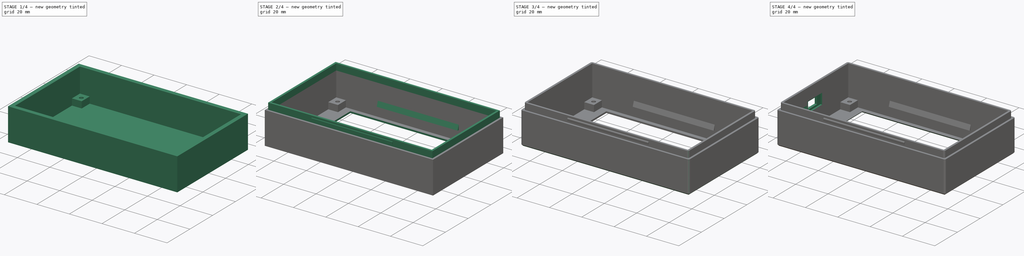
[diagram: build sequence overview — one tinted view per stage of 4, left to right]
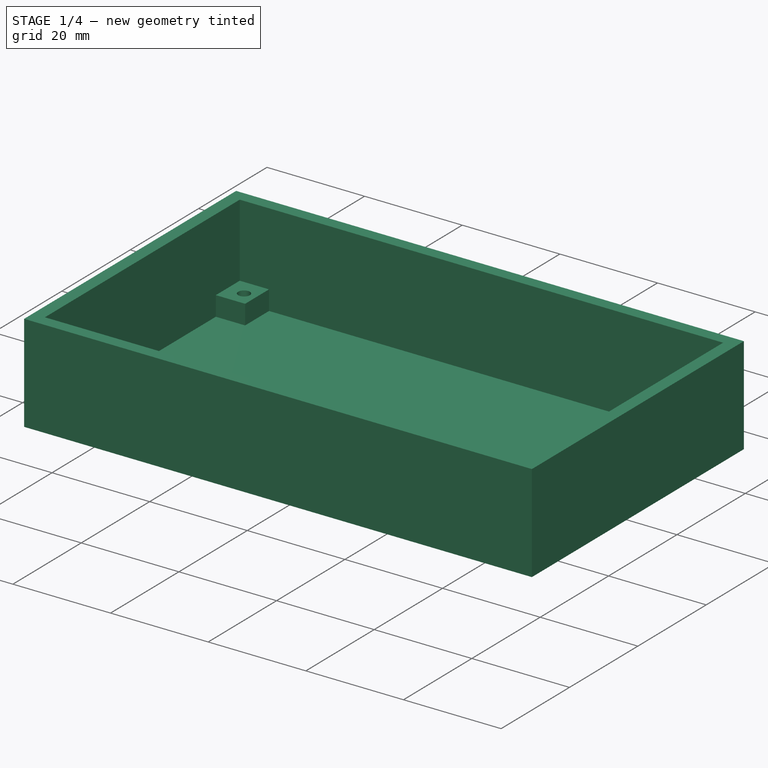
[diagram: stage 1 of 4 — iso view after this stage's code; geometry added in this stage tinted green]
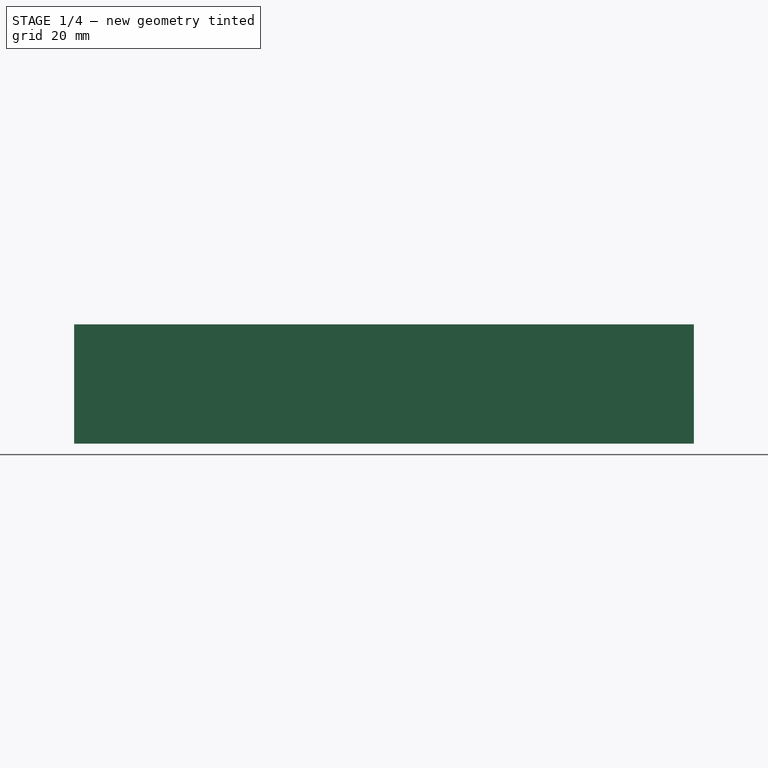
[diagram: stage 1 of 4 — front view after this stage's code; geometry added in this stage tinted green]
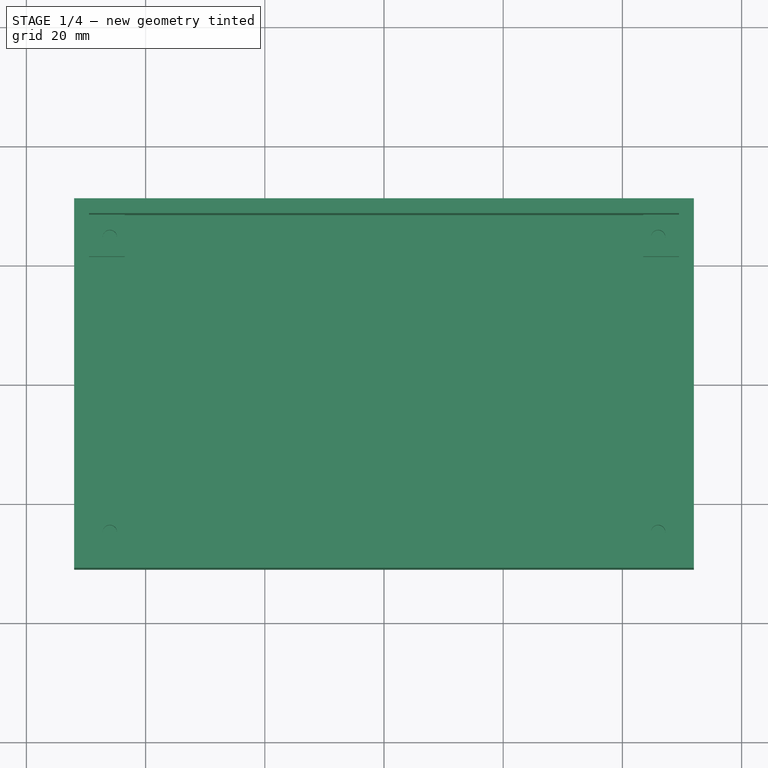
[diagram: stage 1 of 4 — top view after this stage's code; geometry added in this stage tinted green]
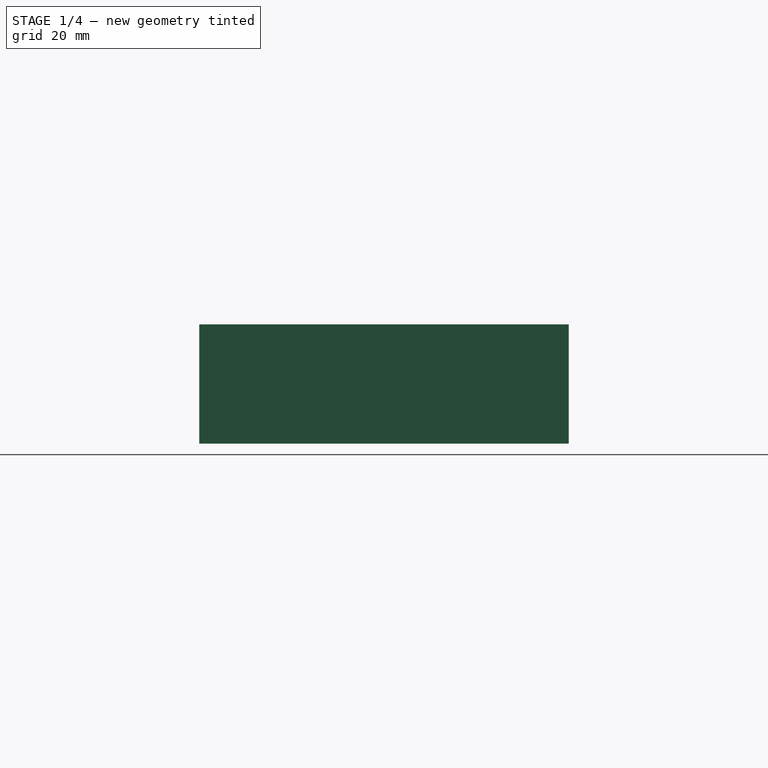
[diagram: stage 1 of 4 — right view after this stage's code; geometry added in this stage tinted green]
FCSTD DOCUMENT  (FreeCAD 0.19R24276 (Git))
Label: TFT_front_35
License: All rights reserved
LicenseURL: http://en.wikipedia.org/wiki/All_rights_reserved
objects: Sketcher::SketchObject×8, PartDesign::Pad×4, PartDesign::Pocket×4, PartDesign::Fillet×3, PartDesign::Chamfer×2, PartDesign::Body×1
note: 35 computed .brp shape members not serialized (recipe doc carries the construction recipe); baked Part::Feature solids carry a one-line shape summary decoded from their .brp

FEATURE [Sketcher::SketchObject] Sketch
  FullyConstrained = true
  MapMode = 5
  Support = -> [XY_Plane001]
  sketch-geometry (4):
    g0: LineSegment StartX=-52 StartY=31 StartZ=0 EndX=52 EndY=31 EndZ=0
    g1: LineSegment StartX=52 StartY=31 StartZ=0 EndX=52 EndY=-31 EndZ=0
    g2: LineSegment StartX=52 StartY=-31 StartZ=0 EndX=-52 EndY=-31 EndZ=0
    g3: LineSegment StartX=-52 StartY=-31 StartZ=0 EndX=-52 EndY=31 EndZ=0
  constraints (10):
    c: Coincident(g0,g1)
    c: Coincident(g1,g2)
    c: Coincident(g2,g3)
    c: Coincident(g3,g0)
    c: Horizontal(g2)
    c: Vertical(g1)
    c: DistanceX(g0,g0) = 104
    c: DistanceY(g3,g3) = 62
    c: Symmetric(g0,g0,g-2)
    c: Symmetric(g0,g2,g-1)
FEATURE [PartDesign::Pad] Pad
  Direction = (1,1,1)
  Length = 20
  Length2 = 100
  Profile = -> Sketch
  Type = 0
FEATURE [Sketcher::SketchObject] Sketch001
  FullyConstrained = true
  MapMode = 5
  Placement = pos=(0,0,20) rot=(0,0,1;0rad)
  Support = -> [Pad]
  sketch-geometry (4):
    g0: LineSegment StartX=-49.5 StartY=28.5 StartZ=0 EndX=49.5 EndY=28.5 EndZ=0
    g1: LineSegment StartX=49.5 StartY=28.5 StartZ=0 EndX=49.5 EndY=-28.5 EndZ=0
    g2: LineSegment StartX=49.5 StartY=-28.5 StartZ=0 EndX=-49.5 EndY=-28.5 EndZ=0
    g3: LineSegment StartX=-49.5 StartY=-28.5 StartZ=0 EndX=-49.5 EndY=28.5 EndZ=0
  constraints (10):
    c: Coincident(g0,g1)
    c: Coincident(g1,g2)
    c: Coincident(g2,g3)
    c: Coincident(g3,g0)
    c: Horizontal(g2)
    c: Vertical(g1)
    c: DistanceX(g0,g0) = 99
    c: DistanceY(g3,g3) = 57
    c: Symmetric(g0,g0,g-2)
    c: Symmetric(g0,g2,g-1)
FEATURE [PartDesign::Pocket] Pocket
  BaseFeature = -> Pad
  Length = 19
  Length2 = 100
  Profile = -> Sketch001
  Type = 0
FEATURE [Sketcher::SketchObject] Sketch002
  ExternalGeometry = -> [Pocket]
  FullyConstrained = true
  MapMode = 5
  Placement = pos=(0,0,1) rot=(0,0,1;0rad)
  Support = -> [Pocket]
  sketch-geometry (20):
    g0: LineSegment StartX=-49.5 StartY=28.5 StartZ=0 EndX=-43.5 EndY=28.5 EndZ=0
    g1: LineSegment StartX=-43.5 StartY=28.5 StartZ=0 EndX=-43.5 EndY=21.5 EndZ=0
    g2: LineSegment StartX=-43.5 StartY=21.5 StartZ=0 EndX=-49.5 EndY=21.5 EndZ=0
    g3: LineSegment StartX=-49.5 StartY=21.5 StartZ=0 EndX=-49.5 EndY=28.5 EndZ=0
    g4: LineSegment StartX=43.5 StartY=28.5 StartZ=0 EndX=49.5 EndY=28.5 EndZ=0
    g5: LineSegment StartX=49.5 StartY=28.5 StartZ=0 EndX=49.5 EndY=21.5 EndZ=0
    g6: LineSegment StartX=49.5 StartY=21.5 StartZ=0 EndX=43.5 EndY=21.5 EndZ=0
    g7: LineSegment StartX=43.5 StartY=21.5 StartZ=0 EndX=43.5 EndY=28.5 EndZ=0
    g8: LineSegment StartX=-49.5 StartY=-21.5 StartZ=0 EndX=-43.5 EndY=-21.5 EndZ=0
    g9: LineSegment StartX=-43.5 StartY=-21.5 StartZ=0 EndX=-43.5 EndY=-28.5 EndZ=0
    g10: LineSegment StartX=-43.5 StartY=-28.5 StartZ=0 EndX=-49.5 EndY=-28.5 EndZ=0
    g11: LineSegment StartX=-49.5 StartY=-28.5 StartZ=0 EndX=-49.5 EndY=-21.5 EndZ=0
    g12: LineSegment StartX=43.5 StartY=-21.5 StartZ=0 EndX=49.5 EndY=-21.5 EndZ=0
    g13: LineSegment StartX=49.5 StartY=-21.5 StartZ=0 EndX=49.5 EndY=-28.5 EndZ=0
    g14: LineSegment StartX=49.5 StartY=-28.5 StartZ=0 EndX=43.5 EndY=-28.5 EndZ=0
    g15: LineSegment StartX=43.5 StartY=-28.5 StartZ=0 EndX=43.5 EndY=-21.5 EndZ=0
    g16: Circle CenterX=-46 CenterY=24.75 CenterZ=0 NormalX=0 NormalY=0 NormalZ=1 AngleXU=0 Radius=1.2
    g17: Circle CenterX=46 CenterY=24.75 CenterZ=0 NormalX=0 NormalY=0 NormalZ=1 AngleXU=0 Radius=1.2
    g18: Circle CenterX=-46 CenterY=-24.75 CenterZ=0 NormalX=0 NormalY=0 NormalZ=1 AngleXU=0 Radius=1.2
    g19: Circle CenterX=46 CenterY=-24.75 CenterZ=0 NormalX=0 NormalY=0 NormalZ=1 AngleXU=0 Radius=1.2
  constraints (57):
    c: Coincident(g0,g1)
    c: Coincident(g1,g2)
    c: Coincident(g2,g3)
    c: Coincident(g3,g0)
    c: Horizontal(g0)
    c: Horizontal(g2)
    c: Vertical(g1)
    c: Vertical(g3)
    c: Coincident(g4,g5)
    c: Coincident(g5,g6)
    c: Coincident(g6,g7)
    c: Coincident(g7,g4)
    c: Horizontal(g4)
    c: Horizontal(g6)
    c: Vertical(g5)
    c: Vertical(g7)
    c: Coincident(g8,g9)
    c: Coincident(g9,g10)
    c: Coincident(g10,g11)
    c: Coincident(g11,g8)
    c: Horizontal(g8)
    c: Horizontal(g10)
    c: Vertical(g9)
    c: Vertical(g11)
    c: Coincident(g12,g13)
    c: Coincident(g13,g14)
    c: Coincident(g14,g15)
    c: Coincident(g15,g12)
    c: Horizontal(g12)
    c: Horizontal(g14)
    c: Vertical(g13)
    c: Vertical(g15)
    c: DistanceX(g0,g0) = 6
    c: Equal(g0,g4)
    c: Equal(g4,g14)
    c: Equal(g14,g10)
    c: DistanceY(g1,g1) = 7
    c: Equal(g1,g7)
    c: Equal(g7,g15)
    c: Equal(g15,g9)
    c: DistanceY(g0,g-3) = 2.5
    c: DistanceX(g-3,g0) = 2.5
    c: DistanceY(g-4,g10) = 2.5
    c: DistanceX(g-4,g10) = 2.5
    c: DistanceY(g4,g-6) = 2.5
    c: DistanceX(g4,g-6) = 2.5
    c: DistanceY(g-5,g13) = 2.5
    c: DistanceX(g13,g-5) = 2.5
    c: DistanceX(g16,g17) = 92
    c: Symmetric(g16,g17,g-2)
    c: Symmetric(g18,g19,g-2)
    c: DistanceY(g18,g16) = 49.5
    c: Symmetric(g16,g18,g-1)
    c: Radius(g16) = 1.2
    c: Equal(g16,g17)
    c: Equal(g16,g19)
    c: Equal(g16,g18)
FEATURE [PartDesign::Pad] Pad001
  BaseFeature = -> Pocket
  Direction = (1,1,1)
  Length = 4
  Length2 = 100
  Profile = -> Sketch002
  Type = 0
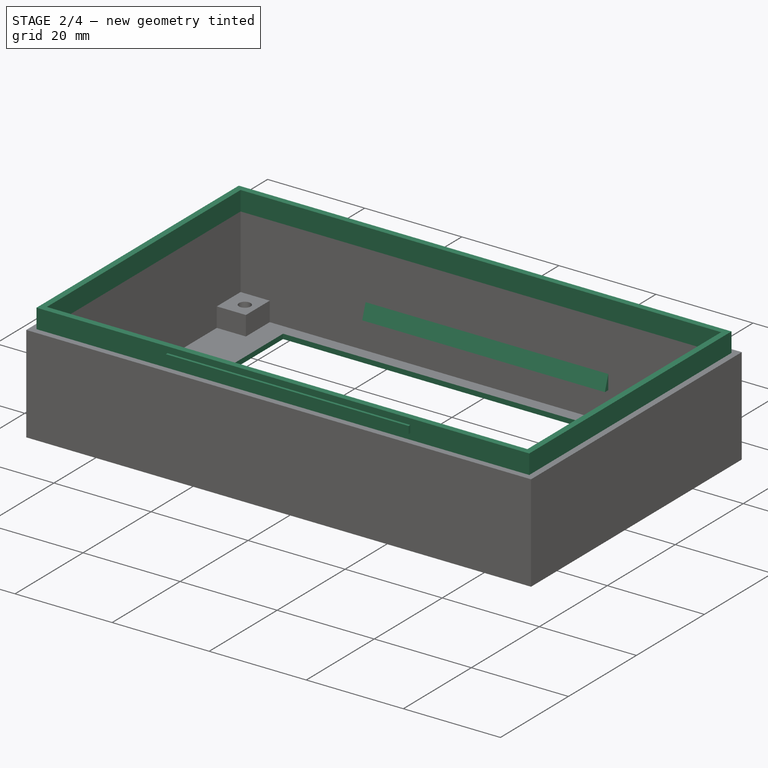
[diagram: stage 2 of 4 — iso view after this stage's code; geometry added in this stage tinted green]
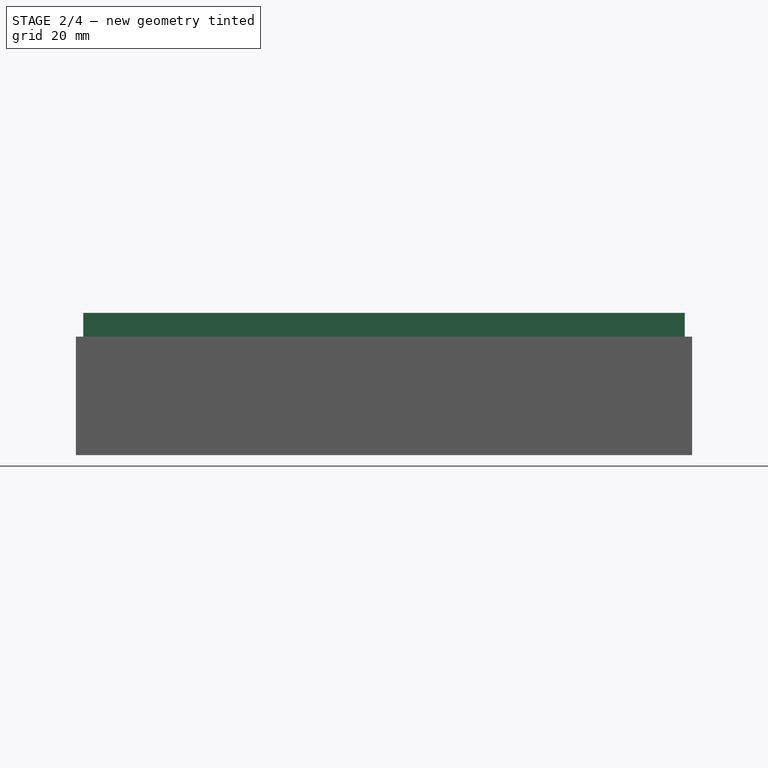
[diagram: stage 2 of 4 — front view after this stage's code; geometry added in this stage tinted green]
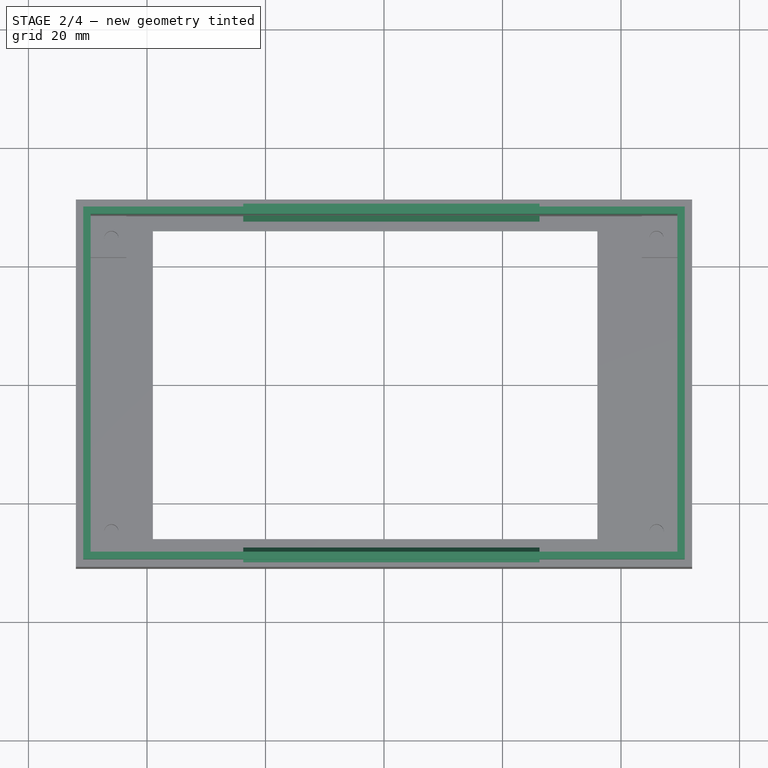
[diagram: stage 2 of 4 — top view after this stage's code; geometry added in this stage tinted green]
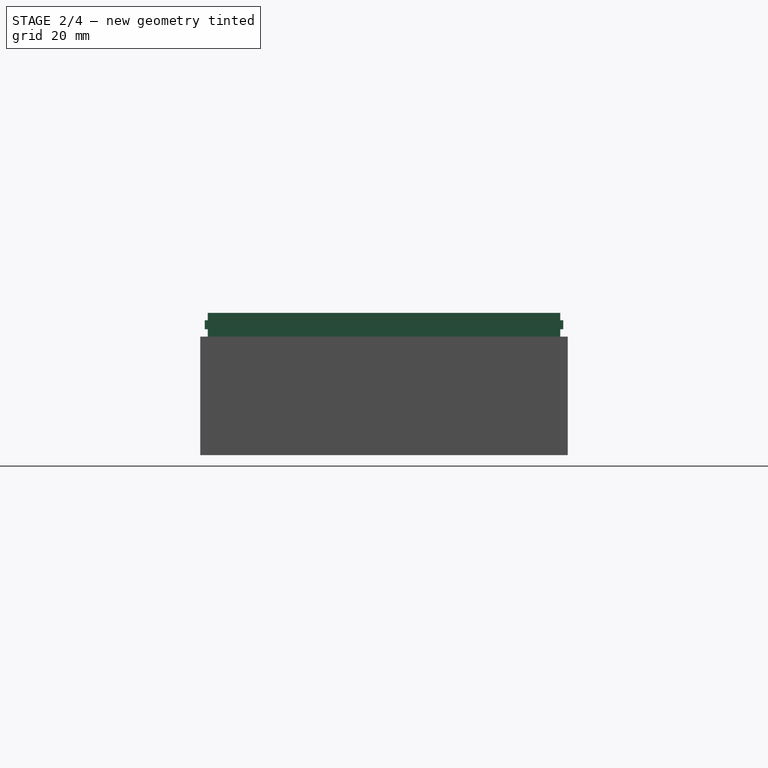
[diagram: stage 2 of 4 — right view after this stage's code; geometry added in this stage tinted green]
FEATURE [Sketcher::SketchObject] Sketch003
  ExternalGeometry = -> [Pad001]
  FullyConstrained = true
  MapMode = 5
  Placement = pos=(0,0,1) rot=(0,0,1;0rad)
  Support = -> [Pad001]
  sketch-geometry (4):
    g0: LineSegment StartX=-39 StartY=26 StartZ=0 EndX=36 EndY=26 EndZ=0
    g1: LineSegment StartX=36 StartY=26 StartZ=0 EndX=36 EndY=-26 EndZ=0
    g2: LineSegment StartX=36 StartY=-26 StartZ=0 EndX=-39 EndY=-26 EndZ=0
    g3: LineSegment StartX=-39 StartY=-26 StartZ=0 EndX=-39 EndY=26 EndZ=0
  constraints (11):
    c: Coincident(g0,g1)
    c: Coincident(g1,g2)
    c: Coincident(g2,g3)
    c: Coincident(g3,g0)
    c: Horizontal(g0)
    c: Horizontal(g2)
    c: Vertical(g1)
    c: DistanceX(g0,g0) = 75
    c: DistanceY(g3,g3) = 52
    c: Symmetric(g0,g2,g-1)
    c: DistanceX(g0,g-3) = 16
FEATURE [PartDesign::Pocket] Pocket001
  BaseFeature = -> Pad001
  Length = 1
  Length2 = 100
  Profile = -> Sketch003
  Type = 0
FEATURE [Sketcher::SketchObject] Sketch004
  FullyConstrained = true
  MapMode = 5
  Placement = pos=(0,0,20) rot=(0,0,1;0rad)
  Support = -> [Pocket001]
  sketch-geometry (8):
    g0: LineSegment StartX=-50.75 StartY=29.75 StartZ=0 EndX=50.75 EndY=29.75 EndZ=0
    g1: LineSegment StartX=50.75 StartY=29.75 StartZ=0 EndX=50.75 EndY=-29.75 EndZ=0
    g2: LineSegment StartX=50.75 StartY=-29.75 StartZ=0 EndX=-50.75 EndY=-29.75 EndZ=0
    g3: LineSegment StartX=-50.75 StartY=-29.75 StartZ=0 EndX=-50.75 EndY=29.75 EndZ=0
    g4: LineSegment StartX=-49.5 StartY=28.5 StartZ=0 EndX=49.5 EndY=28.5 EndZ=0
    g5: LineSegment StartX=49.5 StartY=28.5 StartZ=0 EndX=49.5 EndY=-28.5 EndZ=0
    g6: LineSegment StartX=49.5 StartY=-28.5 StartZ=0 EndX=-49.5 EndY=-28.5 EndZ=0
    g7: LineSegment StartX=-49.5 StartY=-28.5 StartZ=0 EndX=-49.5 EndY=28.5 EndZ=0
  constraints (20):
    c: Coincident(g0,g1)
    c: Coincident(g1,g2)
    c: Coincident(g2,g3)
    c: Coincident(g3,g0)
    c: Horizontal(g2)
    c: Vertical(g1)
    c: Coincident(g4,g5)
    c: Coincident(g5,g6)
    c: Coincident(g6,g7)
    c: Coincident(g7,g4)
    c: Horizontal(g6)
    c: Vertical(g5)
    c: DistanceX(g0,g0) = 101.5
    c: DistanceY(g3,g3) = 59.5
    c: Symmetric(g0,g0,g-2)
    c: Symmetric(g0,g2,g-1)
    c: DistanceX(g4,g4) = 99
    c: DistanceY(g7,g7) = 57
    c: Symmetric(g4,g4,g-2)
    c: Symmetric(g4,g6,g-1)
FEATURE [PartDesign::Pad] Pad002
  BaseFeature = -> Pocket001
  Direction = (1,1,1)
  Length = 4
  Length2 = 100
  Profile = -> Sketch004
  Type = 0
FEATURE [Sketcher::SketchObject] Sketch005
  AttachmentOffset = pos=(0,0,-27) rot=(0,0,1;0rad)
  ExternalGeometry = -> [Pad002]
  FullyConstrained = true
  MapMode = 5
  Placement = pos=(-23.75,0,0) rot=(0.57735,-0.57735,-0.57735;2.0944rad)
  Support = -> [Pad002]
  sketch-geometry (14):
    g0: LineSegment StartX=-30.25 StartY=22.75 StartZ=0 EndX=-29.75 EndY=22.75 EndZ=0
    g1: LineSegment StartX=-29.75 StartY=22.75 StartZ=0 EndX=-29.75 EndY=21.25 EndZ=0
    g2: LineSegment StartX=-29.75 StartY=21.25 StartZ=0 EndX=-30.25 EndY=21.25 EndZ=0
    g3: LineSegment StartX=-30.25 StartY=21.25 StartZ=0 EndX=-30.25 EndY=22.75 EndZ=0
    g4: LineSegment StartX=29.75 StartY=22.75 StartZ=0 EndX=30.25 EndY=22.75 EndZ=0
    g5: LineSegment StartX=30.25 StartY=22.75 StartZ=0 EndX=30.25 EndY=21.25 EndZ=0
    g6: LineSegment StartX=30.25 StartY=21.25 StartZ=0 EndX=29.75 EndY=21.25 EndZ=0
    g7: LineSegment StartX=29.75 StartY=21.25 StartZ=0 EndX=29.75 EndY=22.75 EndZ=0
    g8: LineSegment StartX=-28.5 StartY=7 StartZ=0 EndX=-27.5 EndY=7 EndZ=0
    g9: LineSegment StartX=-27.5 StartY=7 StartZ=0 EndX=-28.5 EndY=10 EndZ=0
    g10: LineSegment StartX=-28.5 StartY=10 StartZ=0 EndX=-28.5 EndY=7 EndZ=0
    g11: LineSegment StartX=28.5 StartY=7 StartZ=0 EndX=28.5 EndY=10 EndZ=0
    g12: LineSegment StartX=28.5 StartY=10 StartZ=0 EndX=27.5 EndY=7 EndZ=0
    g13: LineSegment StartX=27.5 StartY=7 StartZ=0 EndX=28.5 EndY=7 EndZ=0
  constraints (42):
    c: Coincident(g0,g1)
    c: Coincident(g1,g2)
    c: Coincident(g2,g3)
    c: Coincident(g3,g0)
    c: Horizontal(g0)
    c: Horizontal(g2)
    c: Vertical(g1)
    c: Vertical(g3)
    c: Coincident(g4,g5)
    c: Coincident(g5,g6)
    c: Coincident(g6,g7)
    c: Coincident(g7,g4)
    c: Horizontal(g4)
    c: Horizontal(g6)
    c: Vertical(g5)
    c: Vertical(g7)
    c: DistanceX(g-3,g0) = 0
    c: DistanceX(g4,g-4) = 0
    c: DistanceY(g1,g1) = 1.5
    c: Equal(g1,g7)
    c: DistanceX(g0,g0) = 0.5
    c: Equal(g0,g4)
    c: DistanceY(g0,g-3) = 1.25
    c: DistanceY(g4,g-4) = 1.25
    c: Coincident(g8,g9)
    c: Coincident(g9,g10)
    c: Coincident(g10,g8)
    c: Vertical(g10)
    c: Horizontal(g8)
    c: DistanceX(g8,g8) = 1
    c: DistanceX(g-5,g8) = 2.5
    c: DistanceY(g-5,g8) = 7
    c: DistanceY(g10,g10) = 3
    c: Vertical(g11)
    c: Coincident(g11,g12)
    c: Coincident(g12,g13)
    c: Coincident(g13,g11)
    c: Horizontal(g13)
    c: Equal(g11,g10)
    c: Equal(g8,g13)
    c: DistanceY(g-6,g11) = 7
    c: DistanceX(g11,g-6) = 2.5
FEATURE [PartDesign::Pad] Pad003
  BaseFeature = -> Pad002
  Direction = (1,1,1)
  Length = 50
  Length2 = 100
  Profile = -> Sketch005
  Reversed = true
  Type = 0
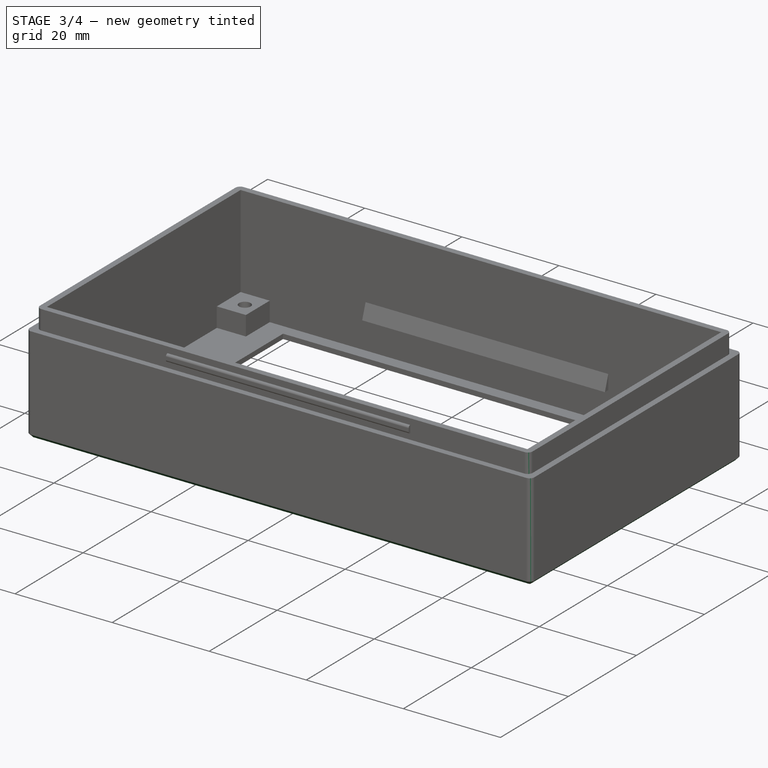
[diagram: stage 3 of 4 — iso view after this stage's code; geometry added in this stage tinted green]
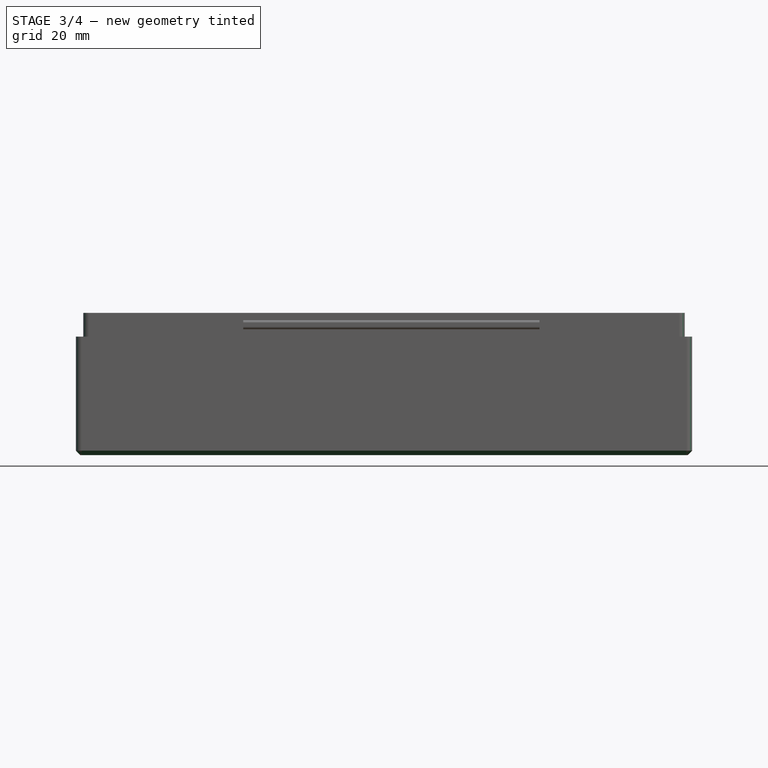
[diagram: stage 3 of 4 — front view after this stage's code; geometry added in this stage tinted green]
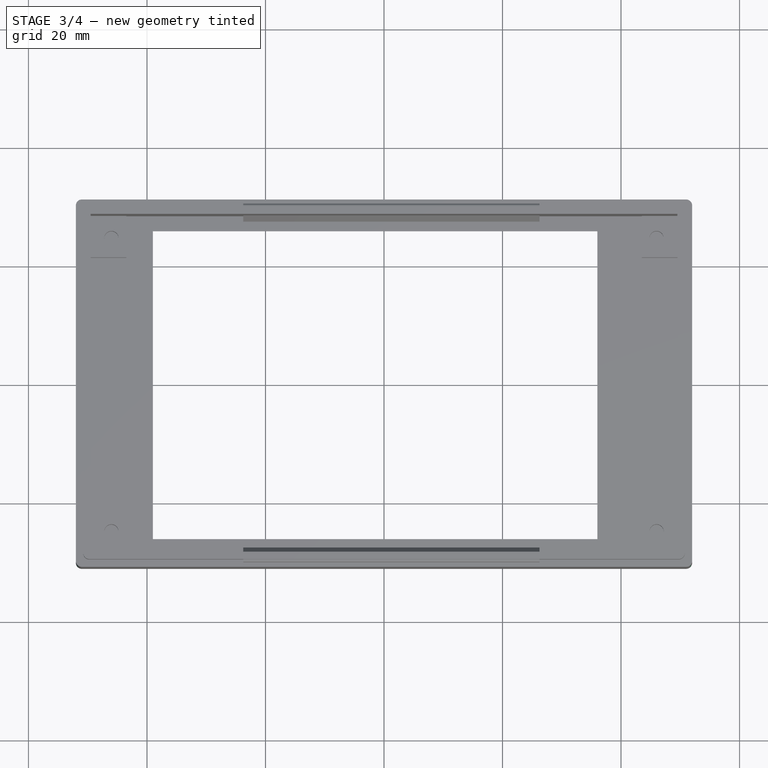
[diagram: stage 3 of 4 — top view after this stage's code; geometry added in this stage tinted green]
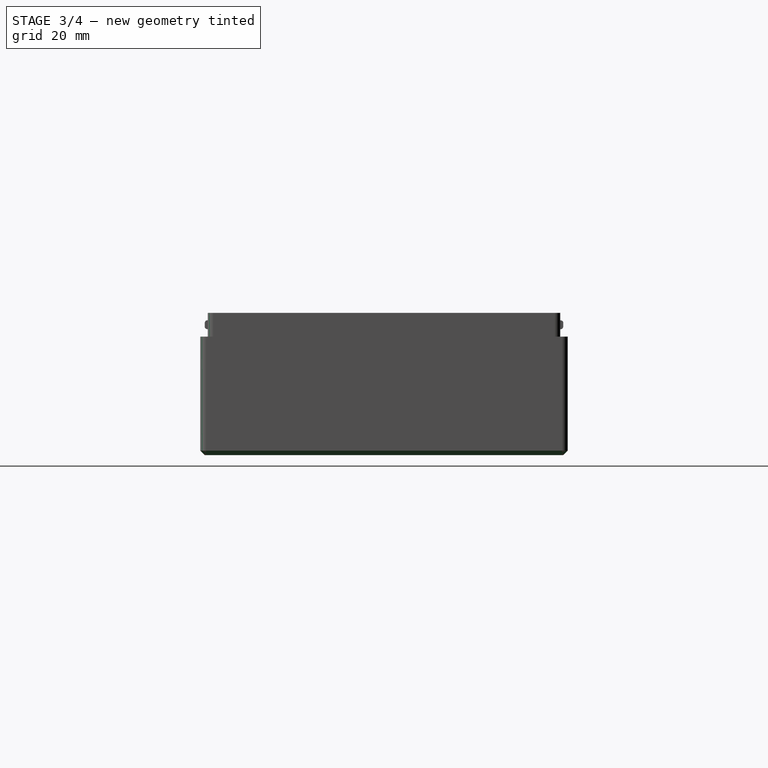
[diagram: stage 3 of 4 — right view after this stage's code; geometry added in this stage tinted green]
FEATURE [PartDesign::Fillet] Fillet
  Base = -> Pad003 [Edge76,Edge72]
  BaseFeature = -> Pad003
  Radius = 0.45
  SupportTransform = false
FEATURE [PartDesign::Fillet] Fillet001
  Base = -> Fillet [Edge59,Edge64]
  BaseFeature = -> Fillet
  Radius = 0.45
  SupportTransform = false
FEATURE [PartDesign::Fillet] Fillet002
  Base = -> Fillet001 [Edge23,Edge46,Edge12,Edge43,Edge15,Edge44,Edge38,Edge48]
  BaseFeature = -> Fillet001
  Radius = 1
  SupportTransform = false
FEATURE [PartDesign::Chamfer] Chamfer
  Angle = 45
  Base = -> Fillet002 [Edge56,Edge64,Edge58,Edge49]
  BaseFeature = -> Fillet002
  ChamferType = 0
  FlipDirection = false
  Size = 0.75
  Size2 = 1
  SupportTransform = false
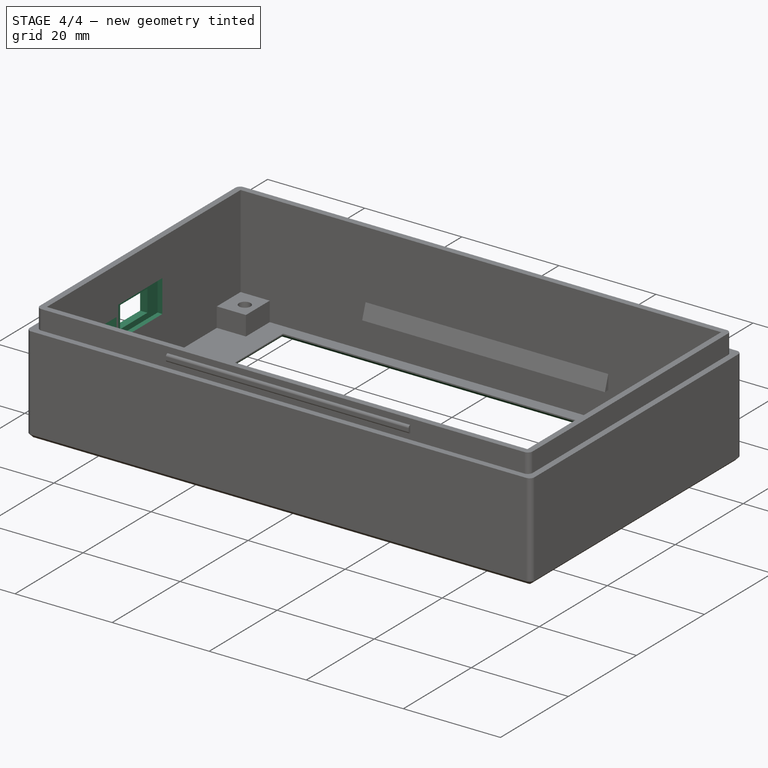
[diagram: stage 4 of 4 — iso view after this stage's code; geometry added in this stage tinted green]
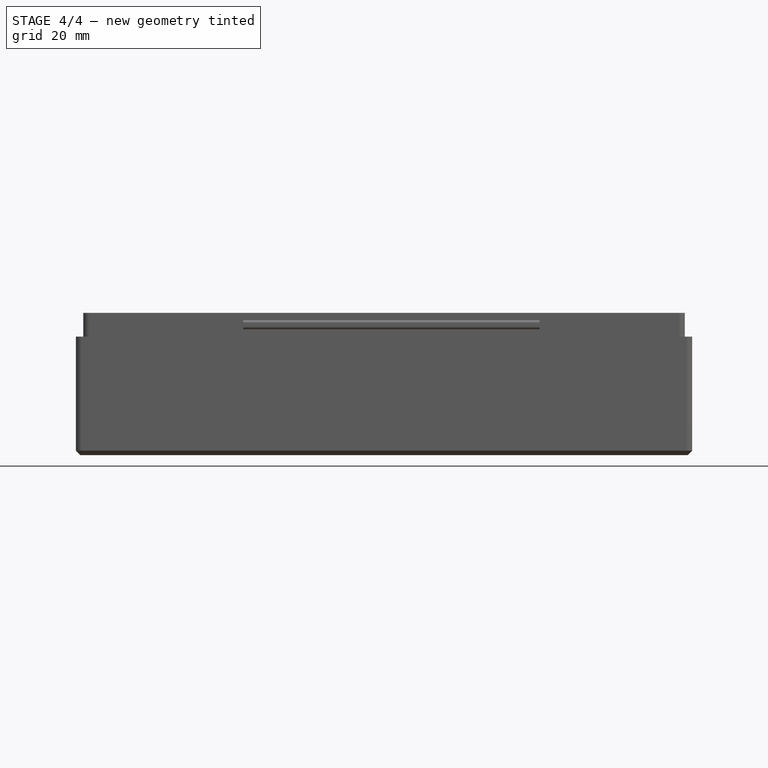
[diagram: stage 4 of 4 — front view after this stage's code; geometry added in this stage tinted green]
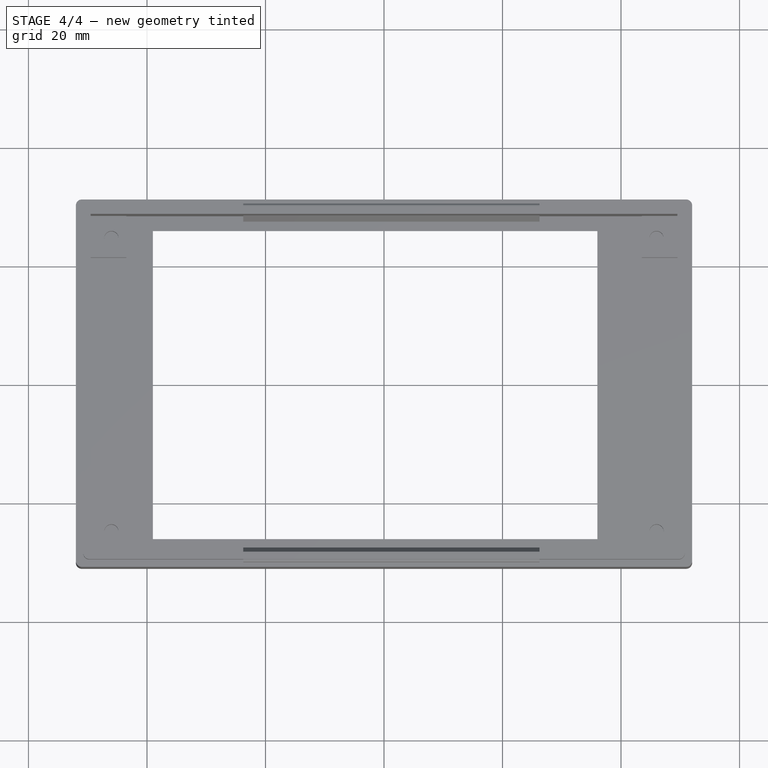
[diagram: stage 4 of 4 — top view after this stage's code; geometry added in this stage tinted green]
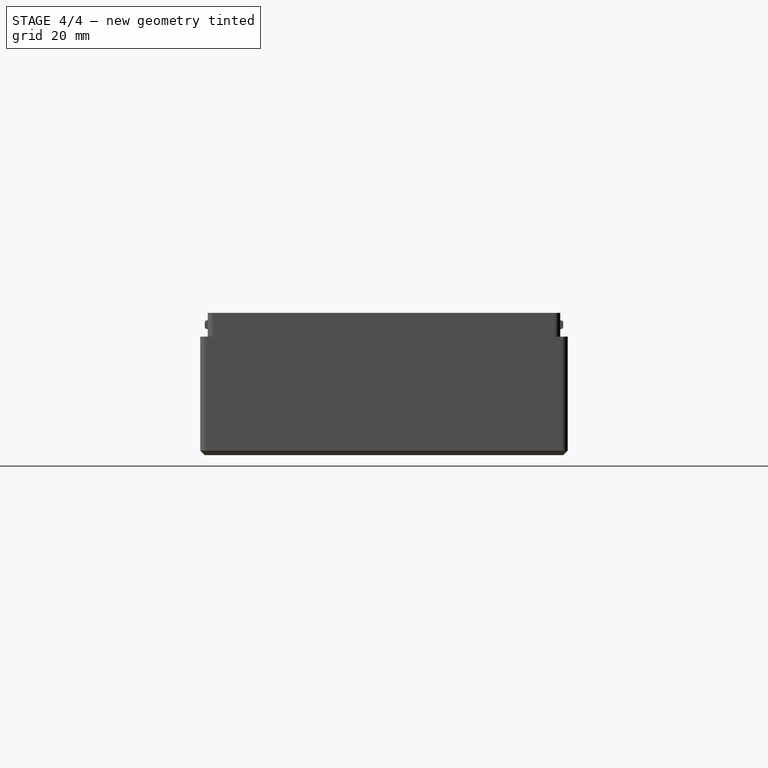
[diagram: stage 4 of 4 — right view after this stage's code; geometry added in this stage tinted green]
FEATURE [PartDesign::Chamfer] Chamfer001
  Angle = 45
  Base = -> Chamfer [Edge40,Edge39,Edge38,Edge37]
  BaseFeature = -> Chamfer
  ChamferType = 0
  FlipDirection = false
  Size = 0.75
  Size2 = 1
  SupportTransform = false
FEATURE [Sketcher::SketchObject] Sketch006
  ExternalGeometry = -> [Pad003]
  FullyConstrained = true
  MapMode = 5
  Placement = pos=(-52,0,0) rot=(0.57735,-0.57735,-0.57735;2.0944rad)
  Support = -> [Pad003]
  sketch-geometry (8):
    g0: LineSegment StartX=8 StartY=14.3 StartZ=0 EndX=16 EndY=14.3 EndZ=0
    g1: LineSegment StartX=16 StartY=14.3 StartZ=0 EndX=16 EndY=11.3 EndZ=0
    g2: LineSegment StartX=16 StartY=11.3 StartZ=0 EndX=8 EndY=11.3 EndZ=0
    g3: LineSegment StartX=8 StartY=11.3 StartZ=0 EndX=8 EndY=14.3 EndZ=0
    g4: LineSegment StartX=-2.5 StartY=15.3 StartZ=0 EndX=5.5 EndY=15.3 EndZ=0
    g5: LineSegment StartX=5.5 StartY=15.3 StartZ=0 EndX=5.5 EndY=10.8 EndZ=0
    g6: LineSegment StartX=5.5 StartY=10.8 StartZ=0 EndX=-2.5 EndY=10.8 EndZ=0
    g7: LineSegment StartX=-2.5 StartY=10.8 StartZ=0 EndX=-2.5 EndY=15.3 EndZ=0
  constraints (24):
    c: Coincident(g0,g1)
    c: Coincident(g1,g2)
    c: Coincident(g2,g3)
    c: Coincident(g3,g0)
    c: Horizontal(g0)
    c: Horizontal(g2)
    c: Vertical(g1)
    c: Vertical(g3)
    c: DistanceX(g0,g0) = 8
    c: DistanceY(g1,g1) = 3
    c: DistanceY(g-1,g2) = 11.3
    c: DistanceX(g1,g-3) = 15
    c: Coincident(g4,g5)
    c: Coincident(g5,g6)
    c: Coincident(g6,g7)
    c: Coincident(g7,g4)
    c: Horizontal(g4)
    c: Horizontal(g6)
    c: Vertical(g5)
    c: Vertical(g7)
    c: DistanceX(g4,g4) = 8
    c: DistanceY(g5,g5) = 4.5
    c: DistanceX(g5,g2) = 2.5
    c: DistanceY(g0,g4) = 1
FEATURE [PartDesign::Pocket] Pocket002
  BaseFeature = -> Chamfer001
  Length = 2.5
  Length2 = 100
  Profile = -> Sketch006
  Type = 0
FEATURE [Sketcher::SketchObject] Sketch009
  ExternalGeometry = -> [Pocket002]
  FullyConstrained = true
  MapMode = 5
  Placement = pos=(-49.5,0,0) rot=(0.57735,0.57735,0.57735;2.0944rad)
  Support = -> [Pocket002]
  sketch-geometry (4):
    g0: LineSegment StartX=-7.5 StartY=16.4 StartZ=0 EndX=5.5 EndY=16.4 EndZ=0
    g1: LineSegment StartX=5.5 StartY=16.4 StartZ=0 EndX=5.5 EndY=9.7 EndZ=0
    g2: LineSegment StartX=5.5 StartY=9.7 StartZ=0 EndX=-7.5 EndY=9.7 EndZ=0
    g3: LineSegment StartX=-7.5 StartY=9.7 StartZ=0 EndX=-7.5 EndY=16.4 EndZ=0
  constraints (12):
    c: Coincident(g0,g1)
    c: Coincident(g1,g2)
    c: Coincident(g2,g3)
    c: Coincident(g3,g0)
    c: Horizontal(g0)
    c: Horizontal(g2)
    c: Vertical(g1)
    c: Vertical(g3)
    c: DistanceX(g0,g0) = 13
    c: DistanceY(g1,g1) = 6.7
    c: DistanceY(g-3,g0) = 1.1
    c: DistanceX(g0,g-3) = 2
FEATURE [PartDesign::Pocket] Pocket003
  BaseFeature = -> Pocket002
  Length = 1
  Length2 = 100
  Profile = -> Sketch009
  Type = 0
FEATURE [PartDesign::Body] Body001  label="Body"
  Group = -> [Sketch,Pad,Sketch001,Pocket,Sketch002,Pad001,Sketch003,Pocket001,Sketch004,Pad002,Sketch005,Pad003,Fillet,Fillet001,Fillet002,Chamfer,Chamfer001,Sketch006,Pocket002,Sketch009,Pocket003]
  Origin = -> Origin001
  Tip = -> Pocket003
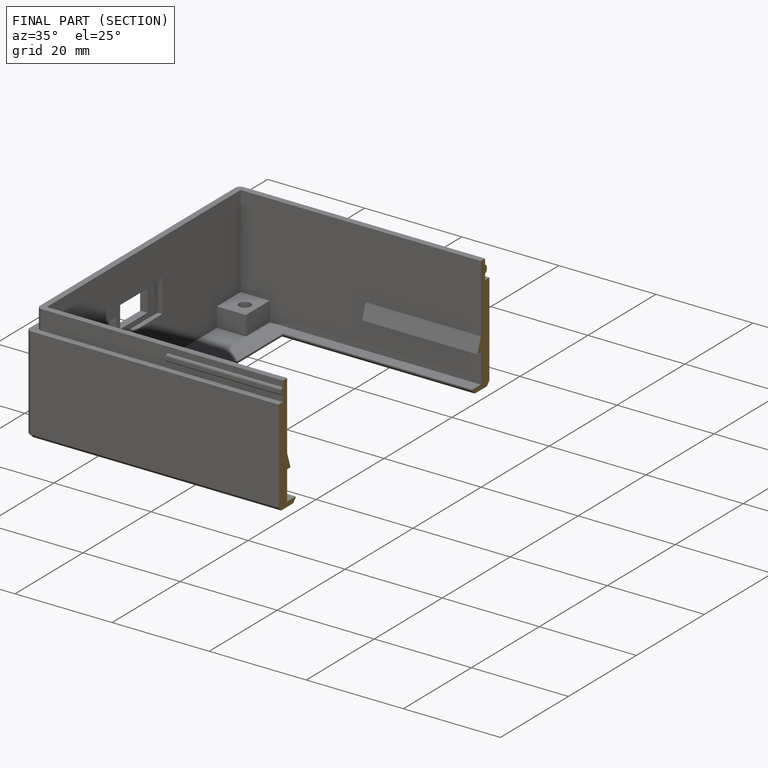
[diagram: finished part — half-section view (interior)]
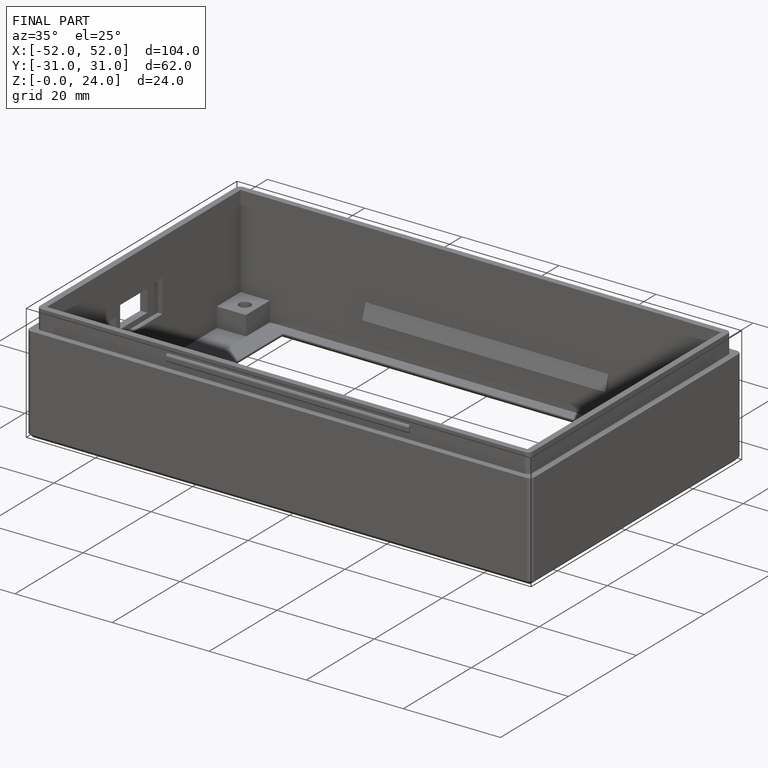
[diagram: finished part — iso view with bounding-box wireframe]
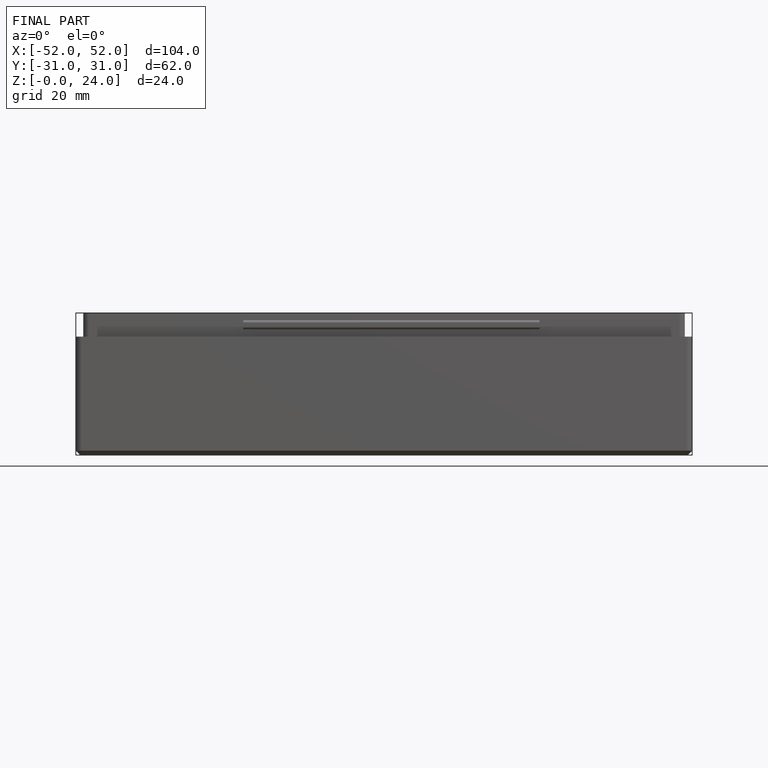
[diagram: finished part — front view with bounding-box wireframe]
